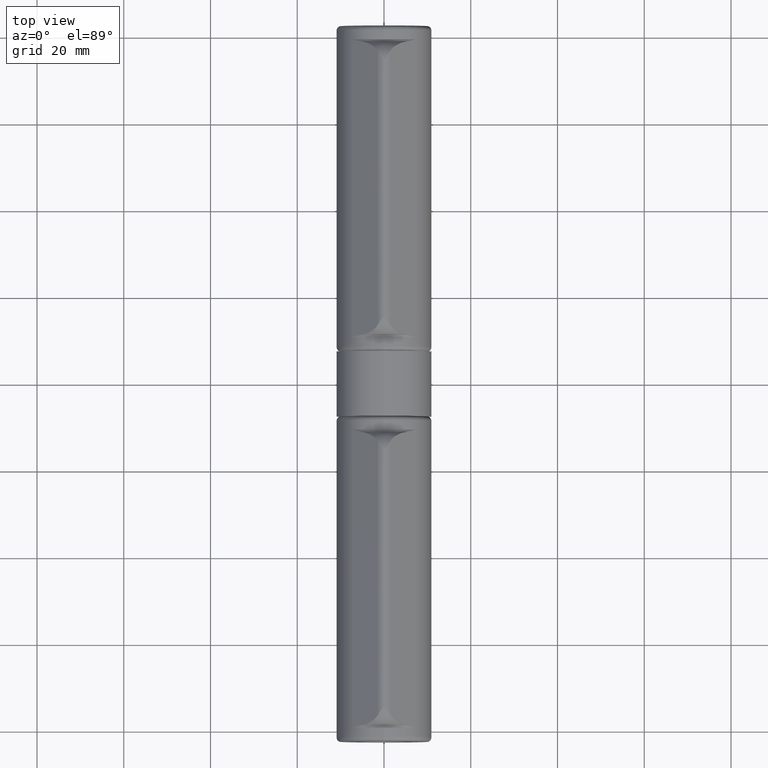
[diagram: clean part render]
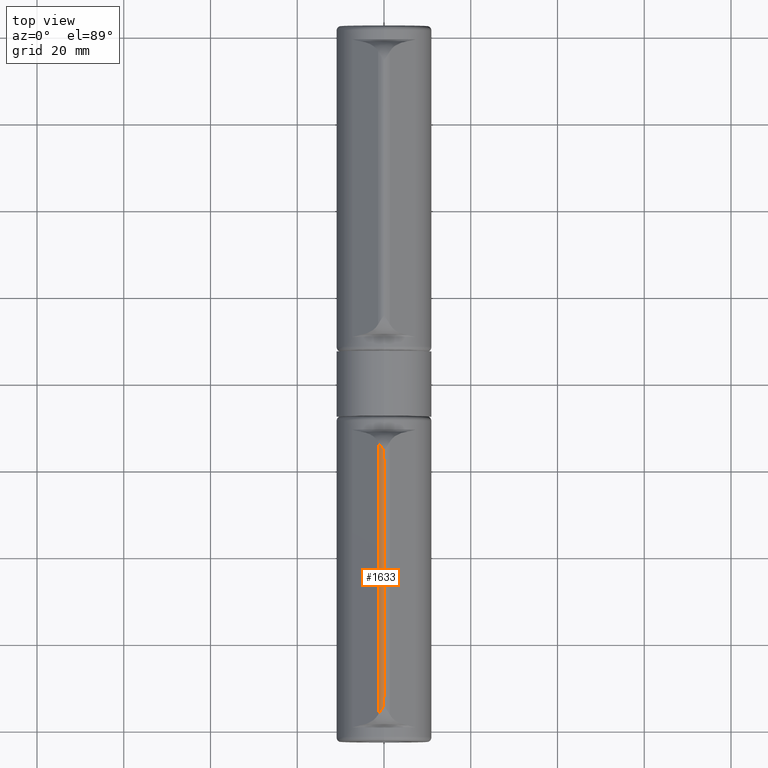
[diagram: same view with one face highlighted and labeled with its STEP entity id]
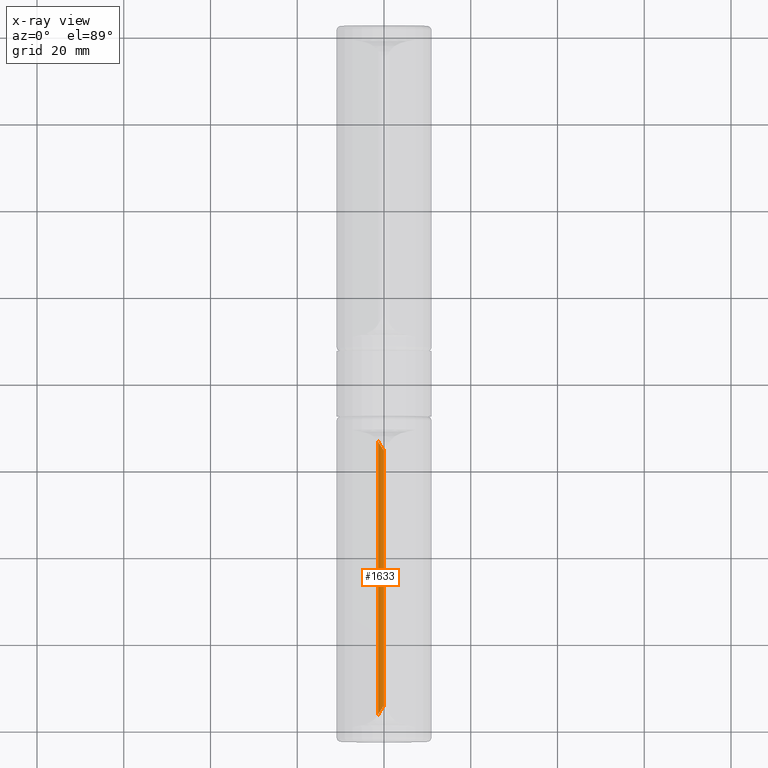
[diagram: x-ray of the same camera — body ghosted, the highlighted face saturated]
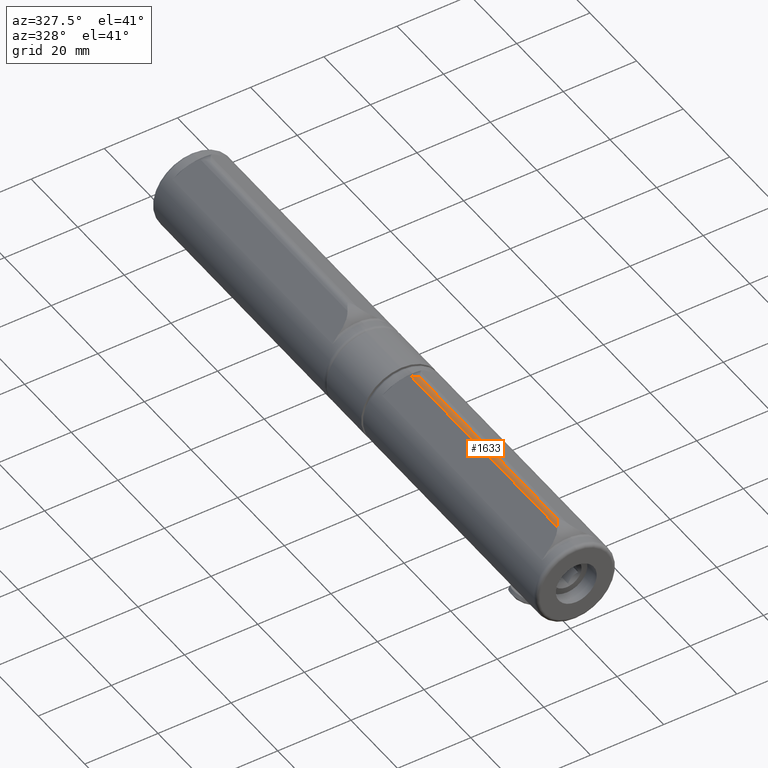
[diagram: same view with one face highlighted and labeled with its STEP entity id]
A machine part, top view. The second image highlights one B-rep face of the part: STEP entity #1633.
The next image is the same camera in x-ray: the body ghosted, the highlighted face saturated — about 0% of this face is hidden behind the body in this view.
A second angle (auxiliary view) of the same face is appended — the face is thin or edge-on in the first view.
In plain terms, the highlighted cylindrical surface (edge-blend (fillet) strip) has radius 2 mm, axis along (0, 1, 0).
Its self-contained STEP definition (entity closure, byte-faithful):
#197 = CARTESIAN_POINT ( 'NONE',  ( 0.04019047954757449387, -29.43071537508482294, 13.99994231150093960 ) ) ;
#247 = CARTESIAN_POINT ( 'NONE',  ( 0.9500490946662476510, -30.79161573060291346, 13.78916174346657542 ) ) ;
#372 = CARTESIAN_POINT ( 'NONE',  ( 0.2679075107740364614, 29.76702913599266864, 13.98607088621623795 ) ) ;
#428 = CARTESIAN_POINT ( 'NONE',  ( 0.06995353398952111612, 29.47496614063702935, 13.99950784628993539 ) ) ;
#468 = VECTOR ( 'NONE', #1355, 1000.000000000000000 ) ;
#1355 = DIRECTION ( 'NONE',  ( 0.000000000000000000, -1.000000000000000000, 1.387778780781456029E-16 ) ) ;
#1536 = CARTESIAN_POINT ( 'NONE',  ( 0.5013659999294578506, 30.11189442064633681, 13.94605056130608212 ) ) ;
#1633 = ADVANCED_FACE ( 'NONE', ( #12911 ), #13513, .T. ) ;
#1648 = CARTESIAN_POINT ( 'NONE',  ( 0.6156692077778798122, 30.28253752962165990, 13.91448063943787261 ) ) ;
#1681 = CARTESIAN_POINT ( 'NONE',  ( 1.351001462192529479, -31.45793136769206555, 13.49723749694688202 ) ) ;
#2089 = AXIS2_PLACEMENT_3D ( 'NONE', #4509, #8269, #14587 ) ;
#2242 = VERTEX_POINT ( 'NONE', #7915 ) ;
#2335 = ORIENTED_EDGE ( 'NONE', *, *, #11109, .T. ) ;
#2736 = CARTESIAN_POINT ( 'NONE',  ( 0.04890691206241980227, -29.44183058075962478, 13.99986897204584047 ) ) ;
#2966 = CARTESIAN_POINT ( 'NONE',  ( 0.09167234762941203763, 29.50763856088569881, 13.99894086666715864 ) ) ;
#3287 = CARTESIAN_POINT ( 'NONE',  ( 0.04019047952005964930, 27.49999999999999645, 13.99994231150114743 ) ) ;
#3355 = ORIENTED_EDGE ( 'NONE', *, *, #7042, .T. ) ;
#3362 = AXIS2_PLACEMENT_3D ( 'NONE', #5142, #10328, #11446 ) ;
#3576 = CARTESIAN_POINT ( 'NONE',  ( 1.351001462188411884, 31.45793136768487841, 13.49723749695052888 ) ) ;
#3923 = DIRECTION ( 'NONE',  ( 0.000000000000000000, 0.000000000000000000, 1.000000000000000000 ) ) ;
#3937 = CARTESIAN_POINT ( 'NONE',  ( 0.04019047952005964930, -28.45871215252207520, 13.99994231150114743 ) ) ;
#3973 = EDGE_CURVE ( 'NONE', #5423, #9701, #5975, .T. ) ;
#3975 = DIRECTION ( 'NONE',  ( 0.000000000000000000, 1.000000000000000000, -1.387778780781456029E-16 ) ) ;
#3995 = CARTESIAN_POINT ( 'NONE',  ( 0.1501165675791804877, -29.59388185887183198, 13.99629779718921618 ) ) ;
#4183 = CARTESIAN_POINT ( 'NONE',  ( 0.04019047941068281532, 29.43061954580049999, 13.99994231150214574 ) ) ;
#4193 = DIRECTION ( 'NONE',  ( 0.000000000000000000, -1.000000000000000000, 0.000000000000000000 ) ) ;
#4245 = EDGE_CURVE ( 'NONE', #7440, #12332, #11891, .T. ) ;
#4465 = B_SPLINE_CURVE_WITH_KNOTS ( 'NONE', 3,
 ( #9046, #7939, #5435, #1648, #1536, #5389, #372, #14254, #12868, #10440, #2966, #428, #11708, #9208, #4183, #6709 ),
 .UNSPECIFIED., .F., .F.,
 ( 4, 2, 2, 2, 2, 2, 2, 4 ),
 ( 4.340072789025307899E-07, 0.001240519005735385948, 0.001860561504963627278, 0.002170582754577748269, 0.002325593379384812993, 0.002403098691788341668, 0.002441851347990105572, 0.002480604004191869476 ),
 .UNSPECIFIED. ) ;
#4509 = CARTESIAN_POINT ( 'NONE',  ( 0.02500000000000151060, 27.49999999999999645, 12.00000000000014921 ) ) ;
#5142 = CARTESIAN_POINT ( 'NONE',  ( 0.02500000000000151060, 37.50000000000000711, 12.00000000000014921 ) ) ;
#5389 = CARTESIAN_POINT ( 'NONE',  ( 0.3265468217388752814, 29.85334104575033365, 13.97802397674086450 ) ) ;
#5423 = VERTEX_POINT ( 'NONE', #3576 ) ;
#5435 = CARTESIAN_POINT ( 'NONE',  ( 0.9495471721051269576, 30.79085620622728925, 13.78933436052301431 ) ) ;
#5583 = EDGE_CURVE ( 'NONE', #6021, #2242, #7643, .T. ) ;
#5684 = VECTOR ( 'NONE', #9821, 1000.000000000000000 ) ;
#5975 = LINE ( 'NONE', #9156, #16250 ) ;
#6021 = VERTEX_POINT ( 'NONE', #7353 ) ;
#6332 = CARTESIAN_POINT ( 'NONE',  ( 0.1062027294749983281, -29.52908258808933084, 13.99840458350219841 ) ) ;
#6356 = CARTESIAN_POINT ( 'NONE',  ( 0.02500000000000151060, -27.49999999999999645, 12.00000000000014921 ) ) ;
#6379 = CARTESIAN_POINT ( 'NONE',  ( 0.1794816681762460009, -29.63700997572519569, 13.99424203055538740 ) ) ;
#6419 = ORIENTED_EDGE ( 'NONE', *, *, #14257, .T. ) ;
#6481 = CARTESIAN_POINT ( 'NONE',  ( 0.2673847846808934947, -29.76626032181184911, 13.98613017325100927 ) ) ;
#6593 = ORIENTED_EDGE ( 'NONE', *, *, #5583, .T. ) ;
#6709 = CARTESIAN_POINT ( 'NONE',  ( 0.04019047952001048030, 29.41742430504415395, 13.99994231150114743 ) ) ;
#6881 = EDGE_LOOP ( 'NONE', ( #6593, #3355, #9222, #2335, #10558, #10318, #11978, #6419 ) ) ;
#7042 = EDGE_CURVE ( 'NONE', #2242, #7440, #14650, .T. ) ;
#7353 = CARTESIAN_POINT ( 'NONE',  ( 0.02500000000000199979, 27.49999999999999645, 14.00000000000014744 ) ) ;
#7378 = CARTESIAN_POINT ( 'NONE',  ( 0.04019047952005989910, -27.49999999999999645, 13.99994231150114743 ) ) ;
#7440 = VERTEX_POINT ( 'NONE', #7378 ) ;
#7643 = LINE ( 'NONE', #15032, #5684 ) ;
#7802 = CIRCLE ( 'NONE', #2089, 2.000000000000019096 ) ;
#7908 = VERTEX_POINT ( 'NONE', #11249 ) ;
#7915 = CARTESIAN_POINT ( 'NONE',  ( 0.02500000000000199979, -27.49999999999999645, 14.00000000000014744 ) ) ;
#7939 = CARTESIAN_POINT ( 'NONE',  ( 1.160508044114108905, 31.12484675074087548, 13.66594456674961400 ) ) ;
#8269 = DIRECTION ( 'NONE',  ( 0.000000000000000000, -1.000000000000000000, -1.387778780781456029E-16 ) ) ;
#8700 = DIRECTION ( 'NONE',  ( -0.000000000000000000, -1.000000000000000000, -1.387778780781456029E-16 ) ) ;
#8808 = LINE ( 'NONE', #13716, #16339 ) ;
#9027 = CARTESIAN_POINT ( 'NONE',  ( 0.06989227749544842105, -29.47487302322435099, 13.99950916635974174 ) ) ;
#9046 = CARTESIAN_POINT ( 'NONE',  ( 1.351001462188411884, 31.45793136768487841, 13.49723749695052888 ) ) ;
#9156 = CARTESIAN_POINT ( 'NONE',  ( 1.351001462184567181, 37.50000000000000711, 13.49723749695393415 ) ) ;
#9208 = CARTESIAN_POINT ( 'NONE',  ( 0.04891763800793619971, 29.44185033603772794, 13.99986890743363332 ) ) ;
#9222 = ORIENTED_EDGE ( 'NONE', *, *, #4245, .T. ) ;
#9474 = AXIS2_PLACEMENT_3D ( 'NONE', #6356, #3975, #3923 ) ;
#9701 = VERTEX_POINT ( 'NONE', #9815 ) ;
#9815 = CARTESIAN_POINT ( 'NONE',  ( 1.351001462192529479, -31.45793136769206555, 13.49723749694688202 ) ) ;
#9821 = DIRECTION ( 'NONE',  ( 0.000000000000000000, -1.000000000000000000, 0.000000000000000000 ) ) ;
#10158 = CARTESIAN_POINT ( 'NONE',  ( 0.6152469644737068588, -30.28189699773152199, 13.91463114303690674 ) ) ;
#10318 = ORIENTED_EDGE ( 'NONE', *, *, #14628, .T. ) ;
#10328 = DIRECTION ( 'NONE',  ( 0.000000000000000000, -1.000000000000000000, 0.000000000000000000 ) ) ;
#10411 = B_SPLINE_CURVE_WITH_KNOTS ( 'NONE', 3,
 ( #12795, #197, #2736, #11519, #9027, #13904, #6332, #3995, #6379, #6481, #15353, #15201, #10158, #247, #10416, #1681 ),
 .UNSPECIFIED., .F., .F.,
 ( 4, 2, 2, 2, 2, 2, 2, 4 ),
 ( 1.956890816732094008E-07, 3.924361120424380256E-05, 7.829153332681439246E-05, 0.0001563873775719641375, 0.0003125790660622637359, 0.0006249624430428712268, 0.001249729197004086426, 0.002499262704926508583 ),
 .UNSPECIFIED. ) ;
#10416 = CARTESIAN_POINT ( 'NONE',  ( 1.160990710306357254, -31.12569070999825627, 13.66551710211785853 ) ) ;
#10440 = CARTESIAN_POINT ( 'NONE',  ( 0.1063434402202375895, 29.52929075759325883, 13.99839909054451326 ) ) ;
#10558 = ORIENTED_EDGE ( 'NONE', *, *, #3973, .F. ) ;
#11109 = EDGE_CURVE ( 'NONE', #12332, #9701, #10411, .T. ) ;
#11249 = CARTESIAN_POINT ( 'NONE',  ( 0.04019047952001048030, 29.41742430504415395, 13.99994231150114743 ) ) ;
#11446 = DIRECTION ( 'NONE',  ( 0.000000000000000000, 0.000000000000000000, -1.000000000000000000 ) ) ;
#11519 = CARTESIAN_POINT ( 'NONE',  ( 0.06268146068597314768, -29.46398372410521205, 13.99965685889269729 ) ) ;
#11708 = CARTESIAN_POINT ( 'NONE',  ( 0.06272908214774158830, 29.46405779638802613, 13.99965602459222147 ) ) ;
#11891 = LINE ( 'NONE', #3937, #468 ) ;
#11978 = ORIENTED_EDGE ( 'NONE', *, *, #13371, .T. ) ;
#12259 = VERTEX_POINT ( 'NONE', #3287 ) ;
#12332 = VERTEX_POINT ( 'NONE', #12772 ) ;
#12772 = CARTESIAN_POINT ( 'NONE',  ( 0.04019047952040150085, -29.41742430504415395, 13.99994231150114565 ) ) ;
#12795 = CARTESIAN_POINT ( 'NONE',  ( 0.04019047952040150085, -29.41742430504415395, 13.99994231150114565 ) ) ;
#12868 = CARTESIAN_POINT ( 'NONE',  ( 0.1503508223253674225, 29.59422644235210242, 13.99628402106628577 ) ) ;
#12911 = FACE_OUTER_BOUND ( 'NONE', #6881, .T. ) ;
#13371 = EDGE_CURVE ( 'NONE', #7908, #12259, #8808, .T. ) ;
#13513 = CYLINDRICAL_SURFACE ( 'NONE', #3362, 2.000000000000019096 ) ;
#13716 = CARTESIAN_POINT ( 'NONE',  ( 0.04019047952005964930, 28.45871215252207520, 13.99994231150114743 ) ) ;
#13904 = CARTESIAN_POINT ( 'NONE',  ( 0.09156454698068662579, -29.50747831101475782, 13.99894423454602688 ) ) ;
#14254 = CARTESIAN_POINT ( 'NONE',  ( 0.1797755674986116214, 29.63744201227835617, 13.99422038142039248 ) ) ;
#14257 = EDGE_CURVE ( 'NONE', #12259, #6021, #7802, .T. ) ;
#14587 = DIRECTION ( 'NONE',  ( 0.000000000000000000, 0.000000000000000000, -1.000000000000000000 ) ) ;
#14628 = EDGE_CURVE ( 'NONE', #5423, #7908, #4465, .T. ) ;
#14650 = CIRCLE ( 'NONE', #9474, 2.000000000000019096 ) ;
#15032 = CARTESIAN_POINT ( 'NONE',  ( 0.02500000000000199979, 37.50000000000000711, 14.00000000000014744 ) ) ;
#15201 = CARTESIAN_POINT ( 'NONE',  ( 0.5001282226513248386, -30.11005570449510671, 13.94633177584682926 ) ) ;
#15353 = CARTESIAN_POINT ( 'NONE',  ( 0.3258129472130817939, -29.85225974672247062, 13.97813046162207762 ) ) ;
#16250 = VECTOR ( 'NONE', #4193, 1000.000000000000000 ) ;
#16339 = VECTOR ( 'NONE', #8700, 1000.000000000000000 ) ;